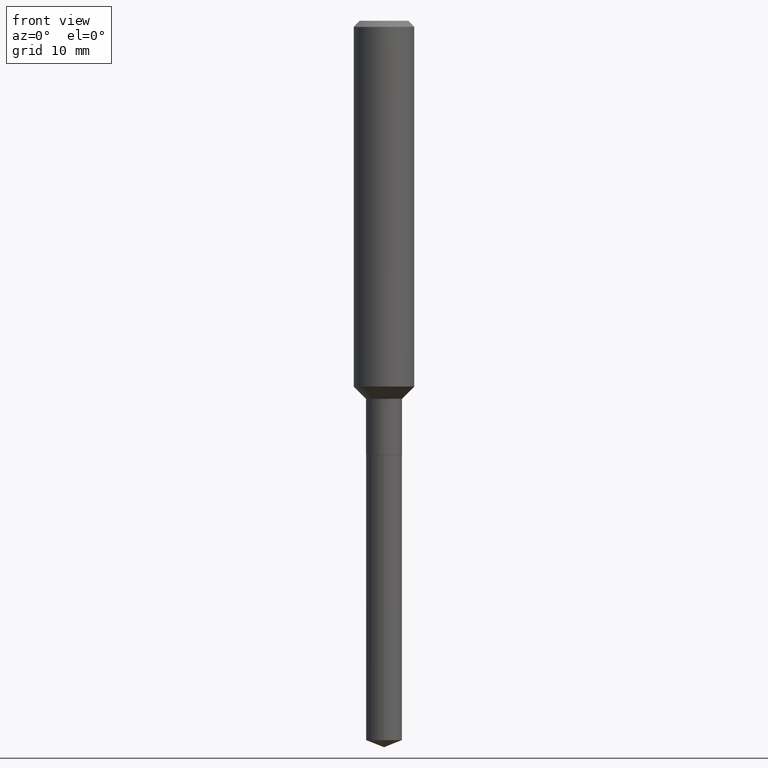
[diagram: clean part render]
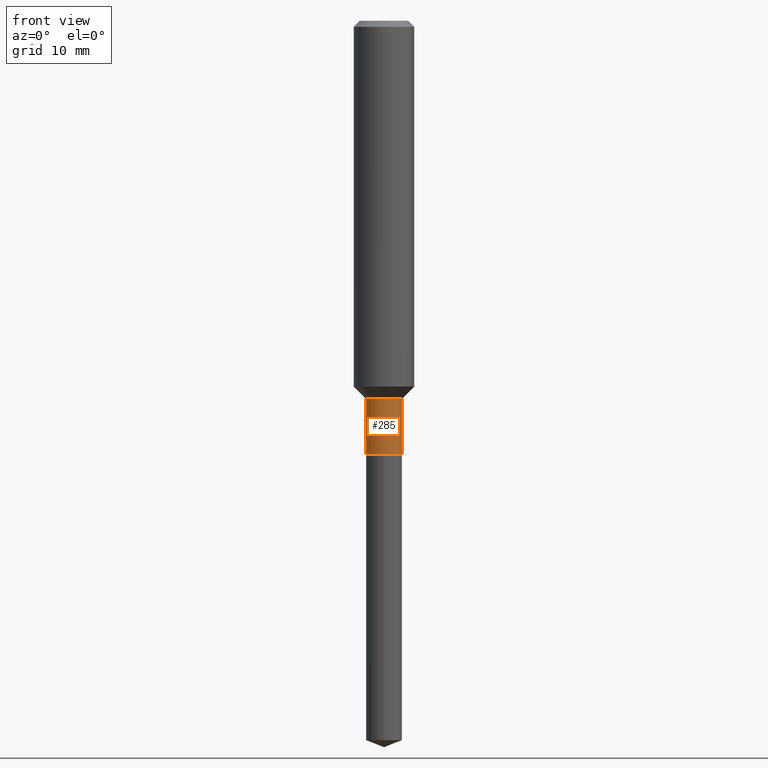
[diagram: same view with one face highlighted and labeled with its STEP entity id]
A machine part, front view. The second image highlights one B-rep face of the part: STEP entity #285.
In plain terms, the highlighted cylindrical surface (edge-blend (fillet) strip) has radius 1.7856 mm, axis along (-0, 0, 1).
Its self-contained STEP definition (entity closure, byte-faithful):
#11 = CARTESIAN_POINT ( 'NONE',  ( 3.606821942242457808E-29, -5.149585826659755542E-15, -1.474899999999999878 ) ) ;
#13 = LINE ( 'NONE', #464, #308 ) ;
#57 = DIRECTION ( 'NONE',  ( -2.445468806185136597E-29, 3.491481338843145583E-15, 1.000000000000000000 ) ) ;
#59 = ORIENTED_EDGE ( 'NONE', *, *, #383, .T. ) ;
#81 = CARTESIAN_POINT ( 'NONE',  ( 0.07030000000000000138, -6.399885294099483730E-15, -1.692399999999999904 ) ) ;
#100 = CARTESIAN_POINT ( 'NONE',  ( 0.07029999999999997362, -5.640488102901099701E-15, -1.474899999999999878 ) ) ;
#140 = DIRECTION ( 'NONE',  ( -2.445468806185136597E-29, 3.491481338843145583E-15, 1.000000000000000000 ) ) ;
#142 = VERTEX_POINT ( 'NONE', #81 ) ;
#151 = EDGE_LOOP ( 'NONE', ( #182, #59, #189, #250 ) ) ;
#163 = DIRECTION ( 'NONE',  ( 1.000000000000000000, -6.982962677686268288E-15, 0.000000000000000000 ) ) ;
#169 = FACE_OUTER_BOUND ( 'NONE', #151, .T. ) ;
#173 = AXIS2_PLACEMENT_3D ( 'NONE', #478, #140, #280 ) ;
#182 = ORIENTED_EDGE ( 'NONE', *, *, #451, .F. ) ;
#189 = ORIENTED_EDGE ( 'NONE', *, *, #199, .T. ) ;
#194 = EDGE_CURVE ( 'NONE', #487, #418, #324, .T. ) ;
#199 = EDGE_CURVE ( 'NONE', #142, #418, #13, .T. ) ;
#204 = AXIS2_PLACEMENT_3D ( 'NONE', #441, #57, #400 ) ;
#213 = CYLINDRICAL_SURFACE ( 'NONE', #204, 0.07029999999999998750 ) ;
#217 = LINE ( 'NONE', #228, #387 ) ;
#222 = DIRECTION ( 'NONE',  ( -2.445468806185136877E-29, 3.491481338843145188E-15, 1.000000000000000000 ) ) ;
#228 = CARTESIAN_POINT ( 'NONE',  ( -0.07029999999999998750, 4.995115432393503418E-16, -3.458011368449198169E-30 ) ) ;
#250 = ORIENTED_EDGE ( 'NONE', *, *, #194, .F. ) ;
#279 = DIRECTION ( 'NONE',  ( -2.445468806185136597E-29, 3.491481338843145583E-15, 1.000000000000000000 ) ) ;
#280 = DIRECTION ( 'NONE',  ( 1.000000000000000000, -6.982962677686265133E-15, 0.000000000000000000 ) ) ;
#285 = ADVANCED_FACE ( 'NONE', ( #169 ), #213, .T. ) ;
#308 = VECTOR ( 'NONE', #391, 39.37007874015748143 ) ;
#324 = CIRCLE ( 'NONE', #359, 0.07029999999999997362 ) ;
#326 = CARTESIAN_POINT ( 'NONE',  ( -0.07030000000000000138, -5.029772879019596525E-15, -1.692399999999999904 ) ) ;
#359 = AXIS2_PLACEMENT_3D ( 'NONE', #11, #279, #163 ) ;
#370 = CARTESIAN_POINT ( 'NONE',  ( -0.07029999999999997362, -5.029772879019596525E-15, -1.474899999999999878 ) ) ;
#373 = VERTEX_POINT ( 'NONE', #326 ) ;
#383 = EDGE_CURVE ( 'NONE', #373, #142, #449, .T. ) ;
#387 = VECTOR ( 'NONE', #222, 39.37007874015748143 ) ;
#391 = DIRECTION ( 'NONE',  ( -2.445468806185136877E-29, 3.491481338843145188E-15, 1.000000000000000000 ) ) ;
#400 = DIRECTION ( 'NONE',  ( 1.000000000000000000, -6.982962677686266711E-15, 4.876176775795935232E-29 ) ) ;
#418 = VERTEX_POINT ( 'NONE', #100 ) ;
#441 = CARTESIAN_POINT ( 'NONE',  ( 0.000000000000000000, 0.000000000000000000, 0.000000000000000000 ) ) ;
#449 = CIRCLE ( 'NONE', #173, 0.07030000000000000138 ) ;
#451 = EDGE_CURVE ( 'NONE', #373, #487, #217, .T. ) ;
#464 = CARTESIAN_POINT ( 'NONE',  ( 0.07029999999999998750, -4.909022762413444543E-16, 3.427952273384541736E-30 ) ) ;
#478 = CARTESIAN_POINT ( 'NONE',  ( 4.138711407587725556E-29, -5.908983017858139571E-15, -1.692399999999999904 ) ) ;
#487 = VERTEX_POINT ( 'NONE', #370 ) ;